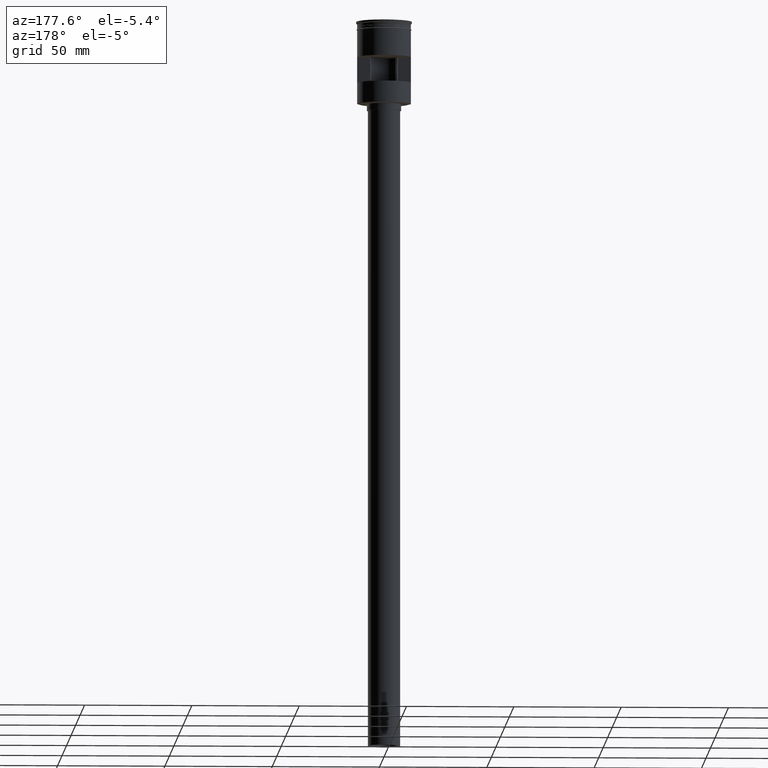
[diagram: clean part render]
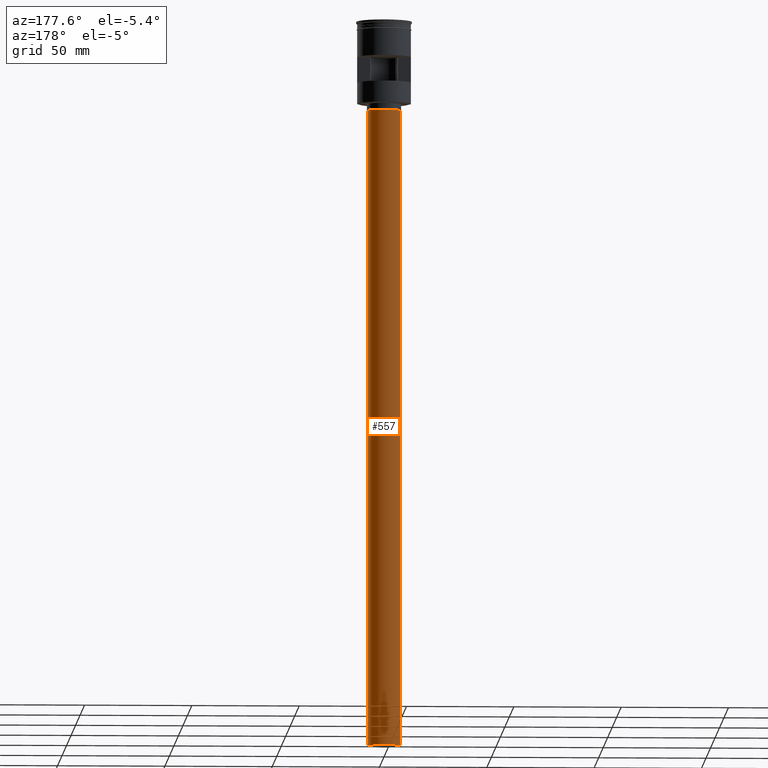
[diagram: same view with one face highlighted and labeled with its STEP entity id]
A machine part, auxiliary view. The second image highlights one B-rep face of the part: STEP entity #557.
In plain terms, the highlighted cylindrical surface (edge-blend (fillet) strip) has radius 7.5 mm, axis along (-0, -0, 1).
Its self-contained STEP definition (entity closure, byte-faithful):
#20 = DIRECTION ( 'NONE',  ( 0.000000000000000000, 0.000000000000000000, -1.000000000000000000 ) ) ;
#23 = CARTESIAN_POINT ( 'NONE',  ( 0.000000000000000000, 0.000000000000000000, -41.50000000000000000 ) ) ;
#74 = EDGE_LOOP ( 'NONE', ( #434, #946, #1357, #893 ) ) ;
#96 = DIRECTION ( 'NONE',  ( -0.000000000000000000, -0.000000000000000000, 1.000000000000000000 ) ) ;
#161 = CARTESIAN_POINT ( 'NONE',  ( -7.500000000000000000, 9.184850993605147944E-16, -41.50000000000000000 ) ) ;
#168 = VECTOR ( 'NONE', #582, 1000.000000000000000 ) ;
#207 = DIRECTION ( 'NONE',  ( 1.000000000000000000, 0.000000000000000000, 0.000000000000000000 ) ) ;
#232 = CARTESIAN_POINT ( 'NONE',  ( 7.500000000000000000, 0.000000000000000000, -41.50000000000000000 ) ) ;
#315 = CARTESIAN_POINT ( 'NONE',  ( -7.500000000000000000, 9.184850993605147944E-16, -338.4999999999999432 ) ) ;
#338 = VERTEX_POINT ( 'NONE', #232 ) ;
#391 = DIRECTION ( 'NONE',  ( -1.000000000000000000, 0.000000000000000000, 0.000000000000000000 ) ) ;
#408 = VERTEX_POINT ( 'NONE', #889 ) ;
#426 = EDGE_CURVE ( 'NONE', #408, #990, #1314, .T. ) ;
#434 = ORIENTED_EDGE ( 'NONE', *, *, #426, .F. ) ;
#437 = DIRECTION ( 'NONE',  ( -0.000000000000000000, -0.000000000000000000, 1.000000000000000000 ) ) ;
#542 = CARTESIAN_POINT ( 'NONE',  ( 0.000000000000000000, 0.000000000000000000, -338.4999999999999432 ) ) ;
#549 = CARTESIAN_POINT ( 'NONE',  ( 7.500000000000000000, 0.000000000000000000, -338.4999999999999432 ) ) ;
#557 = ADVANCED_FACE ( 'NONE', ( #1067 ), #1549, .T. ) ;
#571 = EDGE_CURVE ( 'NONE', #408, #834, #1189, .T. ) ;
#582 = DIRECTION ( 'NONE',  ( -0.000000000000000000, -0.000000000000000000, 1.000000000000000000 ) ) ;
#671 = CARTESIAN_POINT ( 'NONE',  ( 0.000000000000000000, 0.000000000000000000, -338.4999999999999432 ) ) ;
#682 = VECTOR ( 'NONE', #96, 1000.000000000000000 ) ;
#732 = EDGE_CURVE ( 'NONE', #990, #338, #1197, .T. ) ;
#834 = VERTEX_POINT ( 'NONE', #161 ) ;
#889 = CARTESIAN_POINT ( 'NONE',  ( -7.500000000000000000, 9.184850993605147944E-16, -338.4999999999999432 ) ) ;
#893 = ORIENTED_EDGE ( 'NONE', *, *, #732, .F. ) ;
#908 = AXIS2_PLACEMENT_3D ( 'NONE', #23, #917, #1160 ) ;
#917 = DIRECTION ( 'NONE',  ( 0.000000000000000000, 0.000000000000000000, -1.000000000000000000 ) ) ;
#946 = ORIENTED_EDGE ( 'NONE', *, *, #571, .T. ) ;
#990 = VERTEX_POINT ( 'NONE', #549 ) ;
#1067 = FACE_OUTER_BOUND ( 'NONE', #74, .T. ) ;
#1160 = DIRECTION ( 'NONE',  ( -1.000000000000000000, 0.000000000000000000, 0.000000000000000000 ) ) ;
#1166 = AXIS2_PLACEMENT_3D ( 'NONE', #671, #437, #207 ) ;
#1189 = LINE ( 'NONE', #315, #168 ) ;
#1197 = LINE ( 'NONE', #1203, #682 ) ;
#1203 = CARTESIAN_POINT ( 'NONE',  ( 7.500000000000000000, 0.000000000000000000, -338.4999999999999432 ) ) ;
#1228 = EDGE_CURVE ( 'NONE', #834, #338, #1375, .T. ) ;
#1294 = AXIS2_PLACEMENT_3D ( 'NONE', #542, #20, #391 ) ;
#1314 = CIRCLE ( 'NONE', #1294, 7.500000000000000000 ) ;
#1357 = ORIENTED_EDGE ( 'NONE', *, *, #1228, .T. ) ;
#1375 = CIRCLE ( 'NONE', #908, 7.500000000000000000 ) ;
#1549 = CYLINDRICAL_SURFACE ( 'NONE', #1166, 7.500000000000000000 ) ;